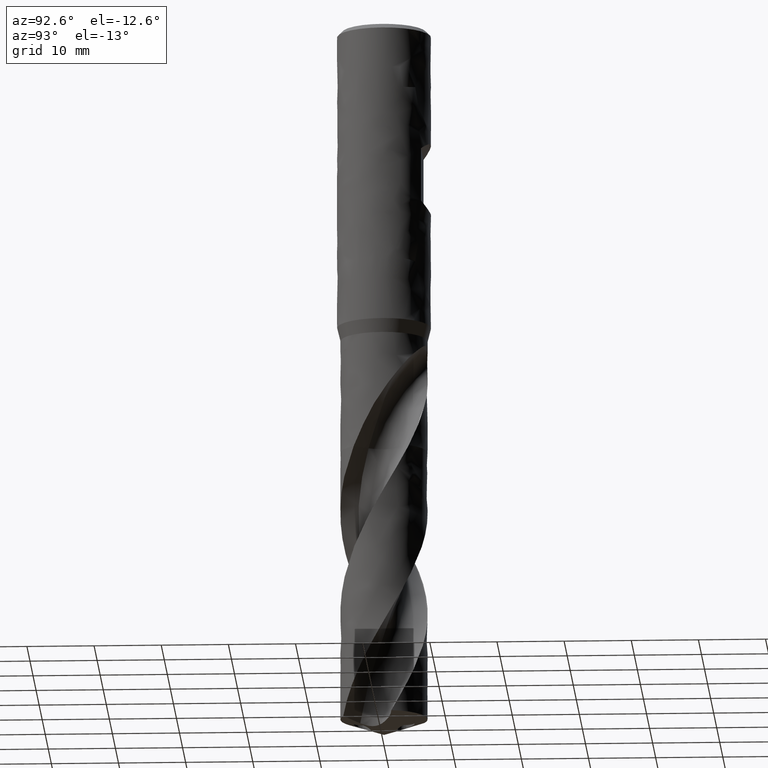
[diagram: clean part render]
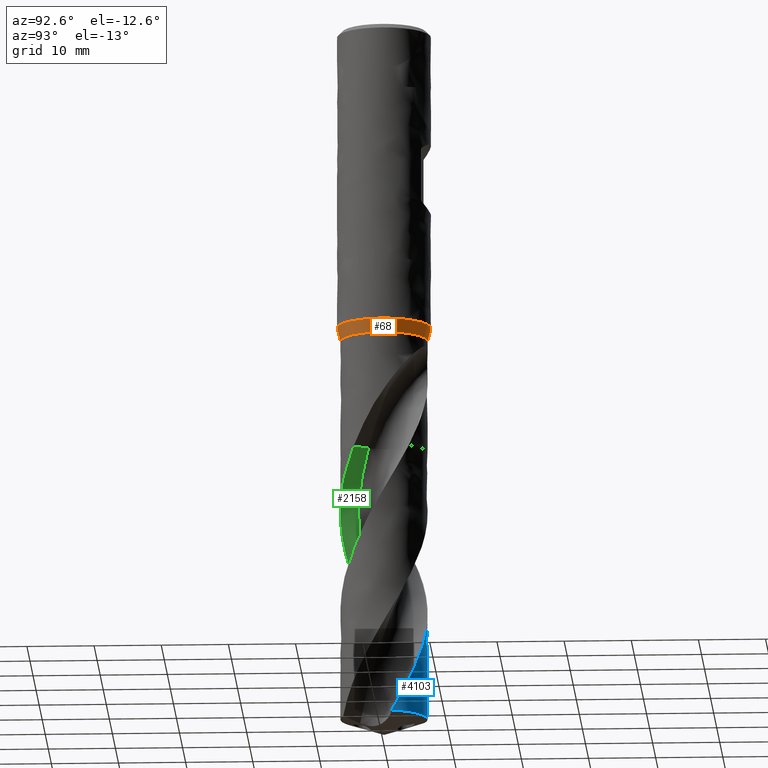
[diagram: same view with three faces highlighted in distinct colors, each labeled with its STEP entity id]
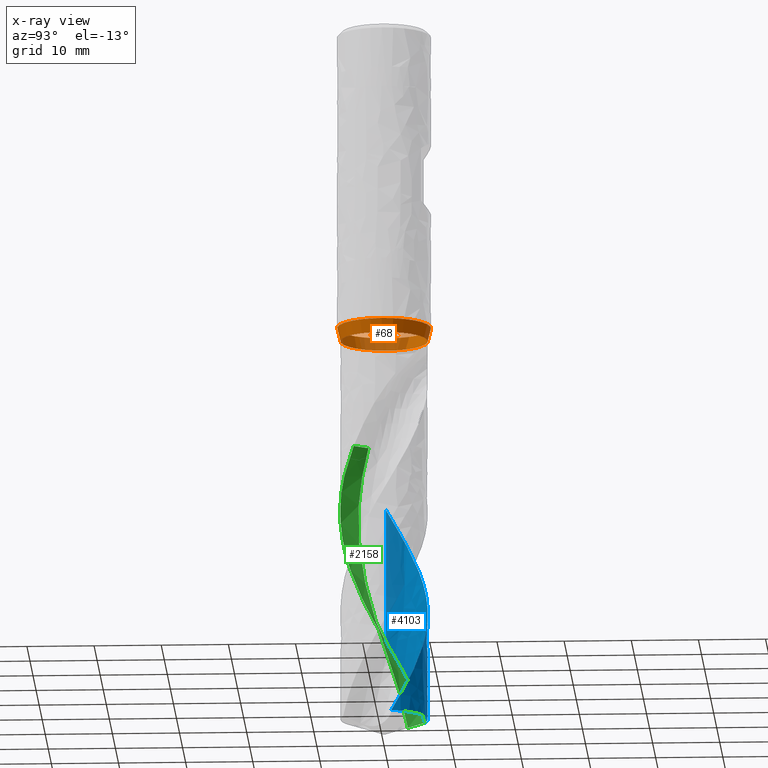
[diagram: x-ray of the same camera — body ghosted, the three highlighted faces saturated]
A machine part, auxiliary view with three faces highlighted in distinct colors.
The next image is the same camera in x-ray (body ghosted, the three faces saturated) — at least one of them is partly hidden behind the body in this view.
Their STEP definitions:

[orange] entity #68 — the highlighted face is a freeform B-spline surface patch.
#68 = ADVANCED_FACE('', (#69), #96, .T.);
#69 = FACE_OUTER_BOUND('', #70, .T.);
#70 = EDGE_LOOP('', (#71, #81, #88, #89));
#71 = ORIENTED_EDGE('', *, *, #72, .F.);
#72 = EDGE_CURVE('', #73, #75, #77, .T.);
#73 = VERTEX_POINT('', #74);
#74 = CARTESIAN_POINT('', (-7., 3.18408167778312E-15, -45.));
#75 = VERTEX_POINT('', #76);
#76 = CARTESIAN_POINT('', (-6.5, 3.27593018771917E-15, -47.));
#77 = LINE('', #78, #79);
#78 = CARTESIAN_POINT('', (-7., 3.18408167778312E-15, -45.));
#79 = VECTOR('', #80, 2.06155281280883);
#80 = DIRECTION('', (0.5, 9.18485099360514E-17, -2.));
#81 = ORIENTED_EDGE('', *, *, #82, .T.);
#82 = EDGE_CURVE('', #73, #73, #83, .T.);
#83 = CIRCLE('', #84, 7.);
#84 = AXIS2_PLACEMENT_3D('', #85, #86, #87);
#85 = CARTESIAN_POINT('', (1.68722975549459E-31, 2.75545529808154E-15, -45.));
#86 = DIRECTION('', (3.74939945665464E-33, 6.12323399573677E-17, -1.));
#87 = DIRECTION('', (-1., 6.12323399573677E-17, 0.));
#88 = ORIENTED_EDGE('', *, *, #72, .T.);
#89 = ORIENTED_EDGE('', *, *, #90, .F.);
#90 = EDGE_CURVE('', #75, #75, #91, .T.);
#91 = CIRCLE('', #92, 6.5);
#92 = AXIS2_PLACEMENT_3D('', #93, #94, #95);
#93 = CARTESIAN_POINT('', (1.76221774462768E-31, 2.87791997799628E-15, -47.));
#94 = DIRECTION('', (3.74939945665464E-33, 6.12323399573677E-17, -1.));
#95 = DIRECTION('', (-1., 6.12323399573677E-17, 0.));
#96 = (
   BOUNDED_SURFACE ()
   B_SPLINE_SURFACE (2, 1, ((#97, #98), (#99, #100), (#101, #102), (#103, #104), (#105, #106), (#107, #108), (#109, #110), (#111, #112), (#113, #114)), .UNSPECIFIED., .T., .F., .U.)
   B_SPLINE_SURFACE_WITH_KNOTS ((3, 2, 2, 2, 3), (2, 2), (0., 0.25, 0.5, 0.75, 1.), (0., 1.), .UNSPECIFIED.)
   GEOMETRIC_REPRESENTATION_ITEM ()
   RATIONAL_B_SPLINE_SURFACE (((1., 1.), (0.707106781186548, 0.707106781186548), (1., 1.), (0.707106781186548, 0.707106781186548), (1., 1.), (0.707106781186548, 0.707106781186548), (1., 1.), (0.707106781186548, 0.707106781186548), (1., 1.)))
   REPRESENTATION_ITEM ('')
   SURFACE ()
);
#97 = CARTESIAN_POINT('', (-7., 3.18408167778312E-15, -45.));
#98 = CARTESIAN_POINT('', (-6.5, 3.27593018771917E-15, -47.));
#99 = CARTESIAN_POINT('', (-7., 7., -45.));
#100 = CARTESIAN_POINT('', (-6.5, 6.5, -47.));
#101 = CARTESIAN_POINT('', (1.4791141972894E-31, 7., -45.));
#102 = CARTESIAN_POINT('', (1.4791141972894E-31, 6.5, -47.));
#103 = CARTESIAN_POINT('', (7., 7., -45.));
#104 = CARTESIAN_POINT('', (6.5, 6.5, -47.));
#105 = CARTESIAN_POINT('', (7., 3.18408167778312E-15, -45.));
#106 = CARTESIAN_POINT('', (6.5, 3.27593018771917E-15, -47.));
#107 = CARTESIAN_POINT('', (7., -7., -45.));
#108 = CARTESIAN_POINT('', (6.5, -6.5, -47.));
#109 = CARTESIAN_POINT('', (8.57252759403147E-16, -7., -45.));
#110 = CARTESIAN_POINT('', (7.9602041944578E-16, -6.5, -47.));
#111 = CARTESIAN_POINT('', (-7., -7., -45.));
#112 = CARTESIAN_POINT('', (-6.5, -6.5, -47.));
#113 = CARTESIAN_POINT('', (-7., 3.18408167778312E-15, -45.));
#114 = CARTESIAN_POINT('', (-6.5, 3.27593018771917E-15, -47.));

[blue] entity #4103 — the highlighted face is a freeform B-spline surface patch.
#2164 = VERTEX_POINT('', #2165);
#2165 = CARTESIAN_POINT('', (-6.5, 5.99766484225336E-15, -91.4493000990844));
#2280 = EDGE_CURVE('', #2281, #2164, #2283, .T.);
#2281 = VERTEX_POINT('', #2282);
#2282 = CARTESIAN_POINT('', (-2.61940619360716, 5.94884116386482, -104.63419347727));
#2283 = B_SPLINE_CURVE_WITH_KNOTS('', 3, (#2284, #2285, #2286, #2287, #2288, #2289, #2290, #2291, #2292, #2293, #2294, #2295, #2296, #2297, #2298, #2299, #2300, #2301, #2302, #2303, #2304, #2305, #2306, #2307, #2308, #2309, #2310, #2311, #2312, #2313, #2314, #2315, #2316, #2317, #2318, #2319, #2320, #2321, #2322, #2323, #2324, #2325, #2326, #2327, #2328, #2329, #2330, #2331, #2332), .UNSPECIFIED., .F., .U., (4, 3, 3, 3, 3, 3, 3, 3, 3, 3, 3, 3, 3, 3, 3, 3, 4), (0., 0.998336370863938, 1.99649047412275, 2.99446505108536, 3.99226193379354, 4.9898817935871, 5.98732581131095, 6.98459455805101, 7.98168743480267, 8.97860342666089, 9.97534175727482, 10.9719006848027, 11.9682773599798, 12.9644690597732, 13.9604725858547, 14.9562835495989, 15.1748740410164), .UNSPECIFIED.);
#2284 = CARTESIAN_POINT('', (-2.61940619360716, 5.94884116386482, -104.63419347727));
#2285 = CARTESIAN_POINT('', (-2.77000933407888, 5.88252727380425, -104.344948105084));
#2286 = CARTESIAN_POINT('', (-2.9181311318725, 5.81047320705004, -104.055659297088));
#2287 = CARTESIAN_POINT('', (-3.06329270126568, 5.73290832181821, -103.766430096253));
#2288 = CARTESIAN_POINT('', (-3.20842776831718, 5.65535759771112, -103.477253700379));
#2289 = CARTESIAN_POINT('', (-3.35065325148036, 5.57227156315184, -103.188033962482));
#2290 = CARTESIAN_POINT('', (-3.48950857905088, 5.48391556068567, -102.898873617238));
#2291 = CARTESIAN_POINT('', (-3.62833893233879, 5.39557544977954, -102.609765279881));
#2292 = CARTESIAN_POINT('', (-3.76384923208562, 5.30193606612728, -102.320614386521));
#2293 = CARTESIAN_POINT('', (-3.89559800422426, 5.20329858738512, -102.031522045313));
#2294 = CARTESIAN_POINT('', (-4.02732331784965, 5.10467867152848, -101.742481178409));
#2295 = CARTESIAN_POINT('', (-4.15533602928887, 5.00102684032901, -101.453397708881));
#2296 = CARTESIAN_POINT('', (-4.27921950007724, 4.89267620736941, -101.164373324449));
#2297 = CARTESIAN_POINT('', (-4.40308099223103, 4.78434479730496, -100.875400216925));
#2298 = CARTESIAN_POINT('', (-4.52285763517652, 4.67127878809751, -100.586383622219));
#2299 = CARTESIAN_POINT('', (-4.63816114285661, 4.5538402709027, -100.297426676787));
#2300 = CARTESIAN_POINT('', (-4.75344432695629, 4.43642245360848, -100.008520663369));
#2301 = CARTESIAN_POINT('', (-4.86429566266075, 4.31459315085372, -99.7195715668055));
#2302 = CARTESIAN_POINT('', (-4.9703542275206, 4.18874430503559, -99.4306814669928));
#2303 = CARTESIAN_POINT('', (-5.07639415575658, 4.06291757339193, -99.1418421309834));
#2304 = CARTESIAN_POINT('', (-5.17768100738963, 3.93302753030298, -98.8529603533684));
#2305 = CARTESIAN_POINT('', (-5.27388346603364, 3.79949380664018, -98.5641371784009));
#2306 = CARTESIAN_POINT('', (-5.37006895921538, 3.6659836318698, -98.2753649378767));
#2307 = CARTESIAN_POINT('', (-5.46120624816701, 3.52878341700518, -97.9865496802998));
#2308 = CARTESIAN_POINT('', (-5.54699811081937, 3.38833468809773, -97.6977938429317));
#2309 = CARTESIAN_POINT('', (-5.63277475394221, 3.24791087488172, -97.4090892310279));
#2310 = CARTESIAN_POINT('', (-5.71323737564219, 3.10419142447575, -97.1203411544657));
#2311 = CARTESIAN_POINT('', (-5.78812358453371, 2.95763847861173, -96.831652528894));
#2312 = CARTESIAN_POINT('', (-5.86299644789043, 2.81111165007248, -96.543015350767));
#2313 = CARTESIAN_POINT('', (-5.93232112351955, 2.66170083634852, -96.2543354120806));
#2314 = CARTESIAN_POINT('', (-5.99586996543632, 2.50988911260613, -95.9657141672432));
#2315 = CARTESIAN_POINT('', (-6.05940736918721, 2.35810471347934, -95.6771448713882));
#2316 = CARTESIAN_POINT('', (-6.11719395059292, 2.20386549327893, -95.3885329406229));
#2317 = CARTESIAN_POINT('', (-6.16903939367948, 2.04767012949616, -95.0999799951036));
#2318 = CARTESIAN_POINT('', (-6.22087535518536, 1.89150333098077, -94.8114798206259));
#2319 = CARTESIAN_POINT('', (-6.26679052297084, 1.73332654250228, -94.522936215087));
#2320 = CARTESIAN_POINT('', (-6.3066336893928, 1.5736491056827, -94.234452203749));
#2321 = CARTESIAN_POINT('', (-6.34646945900873, 1.41400131266742, -93.9460217489043));
#2322 = CARTESIAN_POINT('', (-6.38024920832287, 1.25279827353652, -93.6575480709661));
#2323 = CARTESIAN_POINT('', (-6.40786061987278, 1.09056053306734, -93.3691335096882));
#2324 = CARTESIAN_POINT('', (-6.43546681581829, 0.92835343818357, -93.0807734279231));
#2325 = CARTESIAN_POINT('', (-6.45691682009467, 0.765054035860771, -92.7923707610906));
#2326 = CARTESIAN_POINT('', (-6.472137851813, 0.601191838875201, -92.5040267286688));
#2327 = CARTESIAN_POINT('', (-6.48735594077324, 0.437361322186758, -92.2157384432393));
#2328 = CARTESIAN_POINT('', (-6.49635296757946, 0.272909456583068, -91.9274071935528));
#2329 = CARTESIAN_POINT('', (-6.49909658321736, 0.10836790121551, -91.6391352506302));
#2330 = CARTESIAN_POINT('', (-6.49969883435978, 0.0722493799741283, -91.5758566686909));
#2331 = CARTESIAN_POINT('', (-6.5, 0.0361248580397348, -91.5125779296964));
#2332 = CARTESIAN_POINT('', (-6.5, 5.42260400996705E-15, -91.4493000990844));
#2487 = VERTEX_POINT('', #2488);
#2488 = CARTESIAN_POINT('', (-6.5, 4.76532969912972E-15, -71.323739913378));
#2495 = EDGE_CURVE('', #2487, #2164, #2496, .T.);
#2496 = LINE('', #2497, #2498);
#2497 = CARTESIAN_POINT('', (-6.5, 4.76532969912972E-15, -71.323739913378));
#2498 = VECTOR('', #2499, 20.1255601857065);
#2499 = DIRECTION('', (0., 1.23233514312364E-15, -20.1255601857065));
#2569 = VERTEX_POINT('', #2570);
#2570 = CARTESIAN_POINT('', (6.35152089864831, 1.3813697093949, -104.63419347727));
#2709 = EDGE_CURVE('', #2710, #2569, #2712, .T.);
#2710 = VERTEX_POINT('', #2711);
#2711 = CARTESIAN_POINT('', (5.90833566697193, 2.70953310487018, -102.160751738249));
#2712 = B_SPLINE_CURVE_WITH_KNOTS('', 3, (#2713, #2714, #2715, #2716, #2717, #2718, #2719, #2720, #2721, #2722), .UNSPECIFIED., .F., .U., (4, 3, 3, 4), (0., 0.996649814284806, 1.99312293181498, 2.84343295820334), .UNSPECIFIED.);
#2713 = CARTESIAN_POINT('', (5.90833566697188, 2.70953310487027, -102.160751738249));
#2714 = CARTESIAN_POINT('', (5.97668161123896, 2.56049976053498, -102.449690774479));
#2715 = CARTESIAN_POINT('', (6.03938812307023, 2.40887095584368, -102.738691504657));
#2716 = CARTESIAN_POINT('', (6.09625753935408, 2.25513724945253, -103.027654632911));
#2717 = CARTESIAN_POINT('', (6.15311687321866, 2.10143079861955, -103.316566530686));
#2718 = CARTESIAN_POINT('', (6.20416159151847, 1.94556528476745, -103.605540468623));
#2719 = CARTESIAN_POINT('', (6.24923272492601, 1.7880409250667, -103.894475427715));
#2720 = CARTESIAN_POINT('', (6.28769280574796, 1.65362230393426, -104.141029286889));
#2721 = CARTESIAN_POINT('', (6.32181427634443, 1.51796039261904, -104.387623302988));
#2722 = CARTESIAN_POINT('', (6.35152089864831, 1.3813697093949, -104.63419347727));
#3471 = EDGE_CURVE('', #2281, #2569, #3472, .T.);
#3472 = CIRCLE('', #3473, 6.5);
#3473 = AXIS2_PLACEMENT_3D('', #3474, #3475, #3476);
#3474 = CARTESIAN_POINT('', (3.92315388171172E-31, 6.40699650616516E-15, -104.63419347727));
#3475 = DIRECTION('', (3.74939945665464E-33, 6.12323399573677E-17, -1.));
#3476 = DIRECTION('', (-1., 6.12323399573677E-17, 0.));
#4103 = ADVANCED_FACE('', (#4104), #4225, .T.);
#4104 = FACE_OUTER_BOUND('', #4105, .T.);
#4105 = EDGE_LOOP('', (#4106, #4107, #4108, #4223, #4224));
#4106 = ORIENTED_EDGE('', *, *, #2280, .T.);
#4107 = ORIENTED_EDGE('', *, *, #2495, .F.);
#4108 = ORIENTED_EDGE('', *, *, #4109, .F.);
#4109 = EDGE_CURVE('', #2710, #2487, #4110, .T.);
#4110 = B_SPLINE_CURVE_WITH_KNOTS('', 3, (#4111, #4112, #4113, #4114, #4115, #4116, #4117, #4118, #4119, #4120, #4121, #4122, #4123, #4124, #4125, #4126, #4127, #4128, #4129, #4130, #4131, #4132, #4133, #4134, #4135, #4136, #4137, #4138, #4139, #4140, #4141, #4142, #4143, #4144, #4145, #4146, #4147, #4148, #4149, #4150, #4151, #4152, #4153, #4154, #4155, #4156, #4157, #4158, #4159, #4160, #4161, #4162, #4163, #4164, #4165, #4166, #4167, #4168, #4169, #4170, #4171, #4172, #4173, #4174, #4175, #4176, #4177, #4178, #4179, #4180, #4181, #4182, #4183, #4184, #4185, #4186, #4187, #4188, #4189, #4190, #4191, #4192, #4193, #4194, #4195, #4196, #4197, #4198, #4199, #4200, #4201, #4202, #4203, #4204, #4205, #4206, #4207, #4208, #4209, #4210, #4211, #4212, #4213, #4214, #4215, #4216, #4217, #4218, #4219, #4220, #4221, #4222), .UNSPECIFIED., .F., .U., (4, 3, 3, 3, 3, 3, 3, 3, 3, 3, 3, 3, 3, 3, 3, 3, 3, 3, 3, 3, 3, 3, 3, 3, 3, 3, 3, 3, 3, 3, 3, 3, 3, 3, 3, 3, 3, 4), (0., 0.998296410037865, 1.99641239974501, 2.9943506074266, 3.99211265734012, 4.98969902176801, 5.98711038125016, 6.98434712252083, 7.98140855801874, 8.978293266987, 9.9750001472817, 10.9715273199202, 11.967871760806, 12.9640302635077, 13.9599993900554, 14.9557746012016, 15.0433497252378, 16.042758257145, 17.0419578371459, 18.0409548232524, 19.0397543714496, 20.0383607085247, 21.0367778491704, 22.0350090598024, 23.033056608306, 24.0309223717038, 25.0286079477333, 26.0261141831036, 27.0234411216423, 28.0205886480831, 29.0175562031734, 30.0143423988299, 31.0109452603562, 32.0073625921164, 33.0035915122105, 33.9996282322789, 34.9954685812883, 35.516689479616), .UNSPECIFIED.);
#4111 = CARTESIAN_POINT('', (5.90833566697193, 2.70953310487018, -102.160751738249));
#4112 = CARTESIAN_POINT('', (5.83987680627227, 2.85881267176864, -101.871335336967));
#4113 = CARTESIAN_POINT('', (5.76573385839543, 3.00554505469318, -101.581882684437));
#4114 = CARTESIAN_POINT('', (5.6861399264842, 3.14925590202549, -101.2924956488));
#4115 = CARTESIAN_POINT('', (5.6065603794424, 3.29294077675251, -101.003160913566));
#4116 = CARTESIAN_POINT('', (5.52150519281188, 3.43365333706416, -100.713789152601));
#4117 = CARTESIAN_POINT('', (5.43124226065199, 3.5709393030557, -100.424483080827));
#4118 = CARTESIAN_POINT('', (5.34099540590903, 3.70820081600033, -100.135228539557));
#4119 = CARTESIAN_POINT('', (5.24551123179931, 3.84208454601663, -99.8459381026975));
#4120 = CARTESIAN_POINT('', (5.14509391164331, 3.97215415616904, -99.5567121258216));
#4121 = CARTESIAN_POINT('', (5.0446943173253, 4.10220080621025, -99.2675372036125));
#4122 = CARTESIAN_POINT('', (4.93932682024955, 4.22848195885525, -98.9783265920068));
#4123 = CARTESIAN_POINT('', (4.82932762109126, 4.35058556152675, -98.6891808990421));
#4124 = CARTESIAN_POINT('', (4.71934779054168, 4.47266766425171, -98.4000861187188));
#4125 = CARTESIAN_POINT('', (4.60470001561123, 4.59061587370014, -98.1109542894343));
#4126 = CARTESIAN_POINT('', (4.4857480669474, 4.7040476485552, -97.8218884469244));
#4127 = CARTESIAN_POINT('', (4.36681698582955, 4.81745952425936, -97.532873314763));
#4128 = CARTESIAN_POINT('', (4.24354305691577, 4.92639479017414, -97.2438214125278));
#4129 = CARTESIAN_POINT('', (4.1163196945019, 5.03049820322559, -96.954834738662));
#4130 = CARTESIAN_POINT('', (3.98911860526126, 5.1345833907459, -96.6658986581001));
#4131 = CARTESIAN_POINT('', (3.85792385826869, 5.23387561236822, -96.3769268765857));
#4132 = CARTESIAN_POINT('', (3.72315759073756, 5.32804819371347, -96.0880194864517));
#4133 = CARTESIAN_POINT('', (3.58841501397482, 5.42220422031654, -95.7991628837898));
#4134 = CARTESIAN_POINT('', (3.45005353504661, 5.51127647678093, -95.5102699509256));
#4135 = CARTESIAN_POINT('', (3.30851644172456, 5.59497265005275, -95.2214425664323));
#4136 = CARTESIAN_POINT('', (3.16700443548184, 5.67865398839693, -94.9326663758368));
#4137 = CARTESIAN_POINT('', (3.02226994751349, 5.7569895855002, -94.6438528700881));
#4138 = CARTESIAN_POINT('', (2.87477545401095, 5.82972264254624, -94.3551052651597));
#4139 = CARTESIAN_POINT('', (2.72730727122408, 5.90244272515005, -94.0664091682974));
#4140 = CARTESIAN_POINT('', (2.57702892596407, 5.96958737186774, -93.7776766904442));
#4141 = CARTESIAN_POINT('', (2.42442465080043, 6.03093401660069, -93.4890089990174));
#4142 = CARTESIAN_POINT('', (2.27184789040283, 6.09226960044708, -93.2003933547826));
#4143 = CARTESIAN_POINT('', (2.11689049000577, 6.14783157662691, -92.9117417674891));
#4144 = CARTESIAN_POINT('', (1.96005297063063, 6.19743433626547, -92.6231550898534));
#4145 = CARTESIAN_POINT('', (1.80324421032558, 6.24702800031743, -92.3346213299412));
#4146 = CARTESIAN_POINT('', (1.64450101864837, 6.29068212397065, -92.0460504373757));
#4147 = CARTESIAN_POINT('', (1.48433299629907, 6.32825059207505, -91.7575455600294));
#4148 = CARTESIAN_POINT('', (1.32419486456792, 6.36581204913744, -91.4690945235747));
#4149 = CARTESIAN_POINT('', (1.16257798699603, 6.39730285957647, -91.1806063440244));
#4150 = CARTESIAN_POINT('', (1.00000275823105, 6.42261585987603, -90.8921836824137));
#4151 = CARTESIAN_POINT('', (0.837458436065239, 6.44792404801104, -90.6038158518105));
#4152 = CARTESIAN_POINT('', (0.673898045693393, 6.46706571986573, -90.3154119171083));
#4153 = CARTESIAN_POINT('', (0.509852313960452, 6.47997304145246, -90.0270725931661));
#4154 = CARTESIAN_POINT('', (0.345838521966496, 6.49287784998093, -89.7387894089517));
#4155 = CARTESIAN_POINT('', (0.181279920992048, 6.49955547758579, -89.4504697417992));
#4156 = CARTESIAN_POINT('', (0.0167088512395681, 6.49997852414089, -89.1622156240831));
#4157 = CARTESIAN_POINT('', (0.00223537199945978, 6.50001572968098, -89.1368646313788));
#4158 = CARTESIAN_POINT('', (-0.0122384417967436, 6.50000459341879, -89.1115137126355));
#4159 = CARTESIAN_POINT('', (-0.0267122244688994, 6.4999451118501, -89.0861629356501));
#4160 = CARTESIAN_POINT('', (-0.191887233362379, 6.49926630736202, -88.7968595165739));
#4161 = CARTESIAN_POINT('', (-0.357089921071106, 6.49228671151368, -88.5075181555552));
#4162 = CARTESIAN_POINT('', (-0.521783684818967, 6.47902321235671, -88.2182436208994));
#4163 = CARTESIAN_POINT('', (-0.686443015124662, 6.46576248627336, -87.9290295664812));
#4164 = CARTESIAN_POINT('', (-0.850650649504803, 6.44621582899201, -87.639777986709));
#4165 = CARTESIAN_POINT('', (-1.0138704880483, 6.42044131142595, -87.3505924584817));
#4166 = CARTESIAN_POINT('', (-1.1770572327601, 6.39467201980272, -87.0614655644088));
#4167 = CARTESIAN_POINT('', (-1.33931605322672, 6.36266792562297, -86.7723020100274));
#4168 = CARTESIAN_POINT('', (-1.50011402962351, 6.32452827475116, -86.4832039146779));
#4169 = CARTESIAN_POINT('', (-1.66088022652875, 6.28639616165277, -86.1941629555603));
#4170 = CARTESIAN_POINT('', (-1.82024475892432, 6.24211708610278, -85.905084654048));
#4171 = CARTESIAN_POINT('', (-1.97768645589568, 6.19182980080742, -85.6160728806603));
#4172 = CARTESIAN_POINT('', (-2.1350976968191, 6.14155224325256, -85.3271170146757));
#4173 = CARTESIAN_POINT('', (-2.29064137747636, 6.08525141282479, -85.0381230871739));
#4174 = CARTESIAN_POINT('', (-2.44380961319559, 6.02310506088454, -84.7491958531567));
#4175 = CARTESIAN_POINT('', (-2.59694882958835, 5.96097048322155, -84.4603233594301));
#4176 = CARTESIAN_POINT('', (-2.74776779411993, 5.89297046979808, -84.1714136776845));
#4177 = CARTESIAN_POINT('', (-2.89577041710553, 5.81932244264026, -83.8825697152139));
#4178 = CARTESIAN_POINT('', (-3.04374547833502, 5.74568813057018, -83.5937795426471));
#4179 = CARTESIAN_POINT('', (-3.18895978102907, 5.66638076125809, -83.3049524270566));
#4180 = CARTESIAN_POINT('', (-3.33093497757147, 5.58165496740806, -83.0161913184317));
#4181 = CARTESIAN_POINT('', (-3.47288405244336, 5.4969447620504, -82.7274833382596));
#4182 = CARTESIAN_POINT('', (-3.61164566256871, 5.40678810836563, -82.4387373451726));
#4183 = CARTESIAN_POINT('', (-3.74676488636986, 5.31147370192736, -82.1500582571726));
#4184 = CARTESIAN_POINT('', (-3.88185949945739, 5.21617665612434, -81.8614317493915));
#4185 = CARTESIAN_POINT('', (-4.01336005752219, 5.11569052846903, -81.5727673745876));
#4186 = CARTESIAN_POINT('', (-4.14083380986774, 5.01033884673046, -81.2841693703746));
#4187 = CARTESIAN_POINT('', (-4.26828454392685, 4.90500618863513, -80.9956234790977));
#4188 = CARTESIAN_POINT('', (-4.39175625073792, 4.79477134382971, -80.707040590686));
#4189 = CARTESIAN_POINT('', (-4.51083979104934, 4.67999192087829, -80.4185233739724));
#4190 = CARTESIAN_POINT('', (-4.62990192529742, 4.56523313029629, -80.1300580201593));
#4191 = CARTESIAN_POINT('', (-4.74462126067634, 4.4458892550786, -79.8415552264633));
#4192 = CARTESIAN_POINT('', (-4.85461843841682, 4.32234656377569, -79.5531190004222));
#4193 = CARTESIAN_POINT('', (-4.96459584470651, 4.19882607866289, -79.2647346193718));
#4194 = CARTESIAN_POINT('', (-5.06989135483525, 4.07106503461082, -78.9763119816522));
#4195 = CARTESIAN_POINT('', (-5.17015731867012, 3.93947627232375, -78.687956254283));
#4196 = CARTESIAN_POINT('', (-5.27040524536368, 3.80791118192901, -78.3996524000801));
#4197 = CARTESIAN_POINT('', (-5.36566097687769, 3.67247297265653, -78.1113109978373));
#4198 = CARTESIAN_POINT('', (-5.45560762399465, 3.53360233373983, -77.8230356459868));
#4199 = CARTESIAN_POINT('', (-5.54553803698463, 3.39475675905461, -77.5348123238541));
#4200 = CARTESIAN_POINT('', (-5.63019446650173, 3.25242871278681, -77.2465518398408));
#4201 = CARTESIAN_POINT('', (-5.70929403097388, 3.10708250097838, -76.9583574717059));
#4202 = CARTESIAN_POINT('', (-5.78837920635969, 2.96176272925473, -76.6702155293166));
#4203 = CARTESIAN_POINT('', (-5.86193804985212, 2.81337364514002, -76.3820355010386));
#4204 = CARTESIAN_POINT('', (-5.9297251928353, 2.6623972538775, -76.0939224806612));
#4205 = CARTESIAN_POINT('', (-5.99749986805262, 2.51144863098244, -75.8058624515372));
#4206 = CARTESIAN_POINT('', (-6.05952871721453, 2.35786069444081, -75.5177642881083));
#4207 = CARTESIAN_POINT('', (-6.11560362450886, 2.20213358084705, -75.229732788794));
#4208 = CARTESIAN_POINT('', (-6.17166809277593, 2.04643545775299, -74.9417549100528));
#4209 = CARTESIAN_POINT('', (-6.22180116949654, 1.88854225135626, -74.653739725215));
#4210 = CARTESIAN_POINT('', (-6.26583258329901, 1.72897138150659, -74.3657904920586));
#4211 = CARTESIAN_POINT('', (-6.30985567124064, 1.56943068477063, -74.0778957069664));
#4212 = CARTESIAN_POINT('', (-6.34779570346278, 1.40815400961908, -73.7899633442772));
#4213 = CARTESIAN_POINT('', (-6.37952262978519, 1.24566890306345, -73.5020976364134));
#4214 = CARTESIAN_POINT('', (-6.41124343510876, 1.08321514436475, -73.2142874657814));
#4215 = CARTESIAN_POINT('', (-6.43676480833751, 0.919495926825077, -72.9264388537189));
#4216 = CARTESIAN_POINT('', (-6.45599773796605, 0.755045169098039, -72.6386573911021));
#4217 = CARTESIAN_POINT('', (-6.4752268757758, 0.590626833237396, -72.3509326652998));
#4218 = CARTESIAN_POINT('', (-6.48817683928818, 0.425418540764542, -72.0631701972231));
#4219 = CARTESIAN_POINT('', (-6.49479942820782, 0.259962280635745, -71.7754741179201));
#4220 = CARTESIAN_POINT('', (-6.49826567834459, 0.173362796467345, -71.6248945505739));
#4221 = CARTESIAN_POINT('', (-6.5, 0.0866826846152179, -71.474311503787));
#4222 = CARTESIAN_POINT('', (-6.5, 5.05329379614187E-15, -71.323739913378));
#4223 = ORIENTED_EDGE('', *, *, #2709, .T.);
#4224 = ORIENTED_EDGE('', *, *, #3471, .F.);
#4225 = (
   BOUNDED_SURFACE ()
   B_SPLINE_SURFACE (2, 1, ((#4226, #4227), (#4228, #4229), (#4230, #4231), (#4232, #4233), (#4234, #4235)), .UNSPECIFIED., .F., .F., .U.)
   B_SPLINE_SURFACE_WITH_KNOTS ((3, 2, 3), (2, 2), (0., 10.2101761241668, 18.9344651002863), (0.422036614826075, 1.), .UNSPECIFIED.)
   GEOMETRIC_REPRESENTATION_ITEM ()
   RATIONAL_B_SPLINE_SURFACE (((1., 1.), (0.707106781186548, 0.707106781186548), (1., 1.), (0.749731537536736, 0.749731537536736), (0.927156850692215, 0.927156850692215)))
   REPRESENTATION_ITEM ('')
   SURFACE ()
);
#4226 = CARTESIAN_POINT('', (-6.5, 4.76532969912972E-15, -71.323739913378));
#4227 = CARTESIAN_POINT('', (-6.5, 6.80500671588805E-15, -104.63419347727));
#4228 = CARTESIAN_POINT('', (-6.5, 6.50000000000001, -71.323739913378));
#4229 = CARTESIAN_POINT('', (-6.5, 6.50000000000001, -104.63419347727));
#4230 = CARTESIAN_POINT('', (3.45126646034193E-31, 6.5, -71.323739913378));
#4231 = CARTESIAN_POINT('', (3.94430452610506E-31, 6.50000000000001, -104.63419347727));
#4232 = CARTESIAN_POINT('', (5.2382881863797, 6.50000000000001, -71.323739913378));
#4233 = CARTESIAN_POINT('', (5.2382881863797, 6.50000000000001, -104.63419347727));
#4234 = CARTESIAN_POINT('', (6.35152089864831, 1.38136970939489, -71.323739913378));
#4235 = CARTESIAN_POINT('', (6.35152089864831, 1.38136970939489, -104.63419347727));

[green] entity #2158 — the highlighted face is a freeform B-spline surface patch.
#1633 = EDGE_CURVE('', #1634, #1636, #1638, .T.);
#1634 = VERTEX_POINT('', #1635);
#1635 = CARTESIAN_POINT('', (4.87816629638356, -4.29575297064758, -64.));
#1636 = VERTEX_POINT('', #1637);
#1637 = CARTESIAN_POINT('', (3.274731390133, -2.16180100099735, -64.));
#1638 = LINE('', #1639, #1640);
#1639 = CARTESIAN_POINT('', (4.87816629638356, -4.29575297064758, -64.));
#1640 = VECTOR('', #1641, 2.66922357762644);
#1641 = DIRECTION('', (-1.60343490625057, 2.13395196965023, 0.));
#1694 = EDGE_CURVE('', #1695, #1636, #1697, .T.);
#1695 = VERTEX_POINT('', #1696);
#1696 = CARTESIAN_POINT('', (-1.76933288508049, 3.4667509077758, -105.583370022159));
#1697 = B_SPLINE_CURVE_WITH_KNOTS('', 3, (#1698, #1699, #1700, #1701, #1702, #1703, #1704, #1705, #1706, #1707, #1708, #1709, #1710, #1711, #1712, #1713, #1714, #1715, #1716, #1717, #1718, #1719, #1720, #1721, #1722, #1723, #1724, #1725, #1726, #1727, #1728, #1729, #1730, #1731, #1732, #1733, #1734, #1735), .UNSPECIFIED., .F., .U., (4, 1, 1, 1, 1, 1, 1, 1, 1, 1, 1, 1, 1, 1, 1, 1, 1, 1, 1, 1, 1, 1, 1, 1, 1, 1, 1, 1, 1, 1, 1, 1, 1, 1, 1, 4), (1.46662997784129, 2.41020408163265, 3.61530612244898, 4.82040816326531, 6.02551020408163, 7.23061224489796, 8.43571428571429, 9.64081632653061, 10.8459183673469, 12.0510204081633, 13.2561224489796, 14.4612244897959, 15.6663265306122, 16.8714285714286, 18.0765306122449, 19.2816326530612, 20.4867346938776, 21.6918367346939, 22.8969387755102, 24.1020408163265, 25.3071428571429, 26.5122448979592, 27.7173469387755, 28.9224489795918, 30.1275510204082, 31.3326530612245, 32.5377551020408, 33.7428571428571, 34.9479591836735, 36.1530612244898, 37.3581632653061, 38.5632653061224, 39.7683673469388, 40.9734693877551, 42.1785714285714, 43.05), .UNSPECIFIED.);
#1698 = CARTESIAN_POINT('', (-1.76933288508049, 3.4667509077758, -105.583370022159));
#1699 = CARTESIAN_POINT('', (-1.86403161741141, 3.41547287836797, -105.268845320895));
#1700 = CARTESIAN_POINT('', (-2.07468531352025, 3.29001168240016, -104.552619939359));
#1701 = CARTESIAN_POINT('', (-2.38330179197817, 3.06480483217447, -103.434693877551));
#1702 = CARTESIAN_POINT('', (-2.68814217933525, 2.78931151072498, -102.229591836735));
#1703 = CARTESIAN_POINT('', (-2.96199499352436, 2.48419282969366, -101.024489795918));
#1704 = CARTESIAN_POINT('', (-3.20205648307337, 2.15284875457278, -99.819387755102));
#1705 = CARTESIAN_POINT('', (-3.40588527757476, 1.79893476523793, -98.6142857142857));
#1706 = CARTESIAN_POINT('', (-3.57142669086556, 1.4263264418481, -97.4091836734694));
#1707 = CARTESIAN_POINT('', (-3.69703120537813, 1.039078968413, -96.2040816326531));
#1708 = CARTESIAN_POINT('', (-3.78146949403353, 0.64138595609647, -94.9989795918367));
#1709 = CARTESIAN_POINT('', (-3.82394319587153, 0.237536894513291, -93.7938775510204));
#1710 = CARTESIAN_POINT('', (-3.82409154838274, -0.168126086225973, -92.5887755102041));
#1711 = CARTESIAN_POINT('', (-3.78199378763708, -0.571251822612417, -91.3836734693878));
#1712 = CARTESIAN_POINT('', (-3.69816732451443, -0.967523674991307, -90.1785714285715));
#1713 = CARTESIAN_POINT('', (-3.57356172485133, -1.35270264467176, -88.9734693877551));
#1714 = CARTESIAN_POINT('', (-3.40954856110614, -1.72266965894615, -87.7683673469388));
#1715 = CARTESIAN_POINT('', (-3.20790723667037, -2.07346664231646, -86.5632653061224));
#1716 = CARTESIAN_POINT('', (-2.97080691804732, -2.40133600295454, -85.3581632653061));
#1717 = CARTESIAN_POINT('', (-2.700784742685, -2.70275817758208, -84.1530612244898));
#1718 = CARTESIAN_POINT('', (-2.40072050156955, -2.97448689464155, -82.9479591836735));
#1719 = CARTESIAN_POINT('', (-2.07380802549667, -3.21358183490345, -81.7428571428572));
#1720 = CARTESIAN_POINT('', (-1.72352353182169, -3.41743839049558, -80.5377551020408));
#1721 = CARTESIAN_POINT('', (-1.35359121524302, -3.58381424703326, -79.3326530612245));
#1722 = CARTESIAN_POINT('', (-0.967946387922443, -3.71085254113962, -78.1275510204082));
#1723 = CARTESIAN_POINT('', (-0.570696504644847, -3.79710136875351, -76.9224489795918));
#1724 = CARTESIAN_POINT('', (-0.166080396016394, -3.84152946889433, -75.7173469387755));
#1725 = CARTESIAN_POINT('', (0.241573830700889, -3.84353786773257, -74.5122448979592));
#1726 = CARTESIAN_POINT('', (0.647892196388959, -3.80296756817976, -73.3071428571429));
#1727 = CARTESIAN_POINT('', (1.04849785427849, -3.72010240775061, -72.1020408163266));
#1728 = CARTESIAN_POINT('', (1.4390582048143, -3.59566996371032, -70.8969387755102));
#1729 = CARTESIAN_POINT('', (1.8153173920344, -3.43082953503108, -69.6918367346939));
#1730 = CARTESIAN_POINT('', (2.17318216479515, -3.22718809041111, -68.4867346938776));
#1731 = CARTESIAN_POINT('', (2.50860546387415, -2.98669170372673, -67.2816326530612));
#1732 = CARTESIAN_POINT('', (2.81821987923533, -2.71196183364428, -66.0765306122449));
#1733 = CARTESIAN_POINT('', (3.07142043178922, -2.43328741944994, -64.9826530612245));
#1734 = CARTESIAN_POINT('', (3.21742118566723, -2.24403980479223, -64.2904761904762));
#1735 = CARTESIAN_POINT('', (3.274731390133, -2.16180100099735, -64.));
#2158 = ADVANCED_FACE('', (#2159), #2365, .T.);
#2159 = FACE_OUTER_BOUND('', #2160, .T.);
#2160 = EDGE_LOOP('', (#2161, #2162, #2279, #2333, #2364));
#2161 = ORIENTED_EDGE('', *, *, #1633, .F.);
#2162 = ORIENTED_EDGE('', *, *, #2163, .T.);
#2163 = EDGE_CURVE('', #1634, #2164, #2166, .T.);
#2164 = VERTEX_POINT('', #2165);
#2165 = CARTESIAN_POINT('', (-6.5, 5.99766484225336E-15, -91.4493000990844));
#2166 = B_SPLINE_CURVE_WITH_KNOTS('', 3, (#2167, #2168, #2169, #2170, #2171, #2172, #2173, #2174, #2175, #2176, #2177, #2178, #2179, #2180, #2181, #2182, #2183, #2184, #2185, #2186, #2187, #2188, #2189, #2190, #2191, #2192, #2193, #2194, #2195, #2196, #2197, #2198, #2199, #2200, #2201, #2202, #2203, #2204, #2205, #2206, #2207, #2208, #2209, #2210, #2211, #2212, #2213, #2214, #2215, #2216, #2217, #2218, #2219, #2220, #2221, #2222, #2223, #2224, #2225, #2226, #2227, #2228, #2229, #2230, #2231, #2232, #2233, #2234, #2235, #2236, #2237, #2238, #2239, #2240, #2241, #2242, #2243, #2244, #2245, #2246, #2247, #2248, #2249, #2250, #2251, #2252, #2253, #2254, #2255, #2256, #2257, #2258, #2259, #2260, #2261, #2262, #2263, #2264, #2265, #2266, #2267, #2268, #2269, #2270, #2271, #2272, #2273, #2274, #2275, #2276, #2277, #2278), .UNSPECIFIED., .F., .U., (4, 3, 3, 3, 3, 3, 3, 3, 3, 3, 3, 3, 3, 3, 3, 3, 3, 3, 3, 3, 3, 3, 3, 3, 3, 3, 3, 3, 3, 3, 3, 3, 3, 3, 3, 3, 3, 4), (14.5042565012158, 14.9427696042247, 15.3861502414867, 15.6817237644316, 16.6791014798207, 17.1224118674347, 18.1195608919348, 19.1165111871556, 19.7812217097101, 20.7778786400272, 21.7743492231125, 22.7706352856843, 23.7667338761386, 24.7626404493412, 25.4268740999549, 25.558208770073, 25.6165926721281, 26.6160233026443, 27.6152396969475, 28.6142487454636, 29.6130569021244, 30.6116693015163, 31.6100899198798, 32.6083228369021, 33.6063714350416, 34.6042379547013, 35.6019241519738, 36.5994318115747, 37.596761869741, 38.5939143070916, 39.5908890969763, 40.5876858212368, 41.58430315183, 42.580739089444, 43.5769915703944, 44.5730578261349, 45.5689340849885, 46.1381731945472), .UNSPECIFIED.);
#2167 = CARTESIAN_POINT('', (4.87816629638356, -4.29575297064758, -64.));
#2168 = CARTESIAN_POINT('', (4.83004886397606, -4.35039411008055, -64.1267478988343));
#2169 = CARTESIAN_POINT('', (4.78097103986535, -4.40427406019836, -64.2534744560364));
#2170 = CARTESIAN_POINT('', (4.73098189055815, -4.4573322011278, -64.3801705092961));
#2171 = CARTESIAN_POINT('', (4.68043785726945, -4.51097929211737, -64.50827289996));
#2172 = CARTESIAN_POINT('', (4.62895565993785, -4.56379289201159, -64.6363603190502));
#2173 = CARTESIAN_POINT('', (4.57659959986236, -4.61570537432142, -64.7644496211809));
#2174 = CARTESIAN_POINT('', (4.54169716203921, -4.65031210720873, -64.8498385694132));
#2175 = CARTESIAN_POINT('', (4.50640751463138, -4.68451757356126, -64.9352336916637));
#2176 = CARTESIAN_POINT('', (4.47074563304551, -4.71830832869202, -65.0206356452525));
#2177 = CARTESIAN_POINT('', (4.35040885311941, -4.83233121483488, -65.3088143850514));
#2178 = CARTESIAN_POINT('', (4.22579752872954, -4.94166568814912, -65.5971326366302));
#2179 = CARTESIAN_POINT('', (4.09723689124778, -5.04605289875148, -65.885411352446));
#2180 = CARTESIAN_POINT('', (4.04009478234101, -5.09245050126461, -66.0135443027589));
#2181 = CARTESIAN_POINT('', (3.9821621465247, -5.13787932226918, -66.1416816130085));
#2182 = CARTESIAN_POINT('', (3.92346977302825, -5.1823146315265, -66.2698093604706));
#2183 = CARTESIAN_POINT('', (3.79145156498992, -5.28226407218312, -66.5580102733365));
#2184 = CARTESIAN_POINT('', (3.65556046124698, -5.37720203956905, -66.8462445188988));
#2185 = CARTESIAN_POINT('', (3.51628176567264, -5.46678722325993, -67.1344361286658));
#2186 = CARTESIAN_POINT('', (3.37703082799015, -5.55635455285023, -67.4225703025738));
#2187 = CARTESIAN_POINT('', (3.23435446826813, -5.64059812923841, -67.7107732164445));
#2188 = CARTESIAN_POINT('', (3.08871806195297, -5.71925001497272, -67.9989369726233));
#2189 = CARTESIAN_POINT('', (2.99161587721139, -5.77169067958455, -68.1910683976994));
#2190 = CARTESIAN_POINT('', (2.89317788421146, -5.82165766188028, -68.38322042134));
#2191 = CARTESIAN_POINT('', (2.79354270366199, -5.86908162856991, -68.5753587576204));
#2192 = CARTESIAN_POINT('', (2.64415121694925, -5.94018840883074, -68.86344808062));
#2193 = CARTESIAN_POINT('', (2.49202359500231, -6.00559613297542, -69.1515943587861));
#2194 = CARTESIAN_POINT('', (2.33766398733189, -6.06509085524129, -69.4396966636537));
#2195 = CARTESIAN_POINT('', (2.18333324063128, -6.1245744536425, -69.7277451013726));
#2196 = CARTESIAN_POINT('', (2.02671651167056, -6.17816853971395, -70.015854031193));
#2197 = CARTESIAN_POINT('', (1.86832774764988, -6.22570087840409, -70.3039197468534));
#2198 = CARTESIAN_POINT('', (1.70996831312129, -6.27322441533762, -70.5919321202127));
#2199 = CARTESIAN_POINT('', (1.54978031501776, -6.31470568926585, -70.8800050598978));
#2200 = CARTESIAN_POINT('', (1.38828610570939, -6.35001273138049, -71.1680334567825));
#2201 = CARTESIAN_POINT('', (1.22682228492348, -6.38531312973466, -71.4560076550835));
#2202 = CARTESIAN_POINT('', (1.06399560897568, -6.41445405007031, -71.7440416375218));
#2203 = CARTESIAN_POINT('', (0.900338971002137, -6.43734337574864, -72.0320319256412));
#2204 = CARTESIAN_POINT('', (0.736713881008026, -6.46022828906714, -72.3199666980675));
#2205 = CARTESIAN_POINT('', (0.57219990231611, -6.47687230434066, -72.6079611547896));
#2206 = CARTESIAN_POINT('', (0.407335070734348, -6.48722422459329, -72.895912101237));
#2207 = CARTESIAN_POINT('', (0.297376193178986, -6.49412858085048, -73.0879649639281));
#2208 = CARTESIAN_POINT('', (0.187239339149998, -6.498236478234, -73.2800368713387));
#2209 = CARTESIAN_POINT('', (0.0770840378253613, -6.49954291093708, -73.4720968353605));
#2210 = CARTESIAN_POINT('', (0.0553037348433304, -6.4998012235172, -73.51007162329));
#2211 = CARTESIAN_POINT('', (0.0335223036310031, -6.49995005231462, -73.5480466666802));
#2212 = CARTESIAN_POINT('', (0.0117409841650187, -6.49998939609064, -73.5860217297619));
#2213 = CARTESIAN_POINT('', (0.00205825209442745, -6.50000688608901, -73.6029032764358));
#2214 = CARTESIAN_POINT('', (-0.00762447733768856, -6.50000274008395, -73.6197848609029));
#2215 = CARTESIAN_POINT('', (-0.0173070952105894, -6.49997695876342, -73.6366664624503));
#2216 = CARTESIAN_POINT('', (-0.183056634811923, -6.49953562749698, -73.9256500535554));
#2217 = CARTESIAN_POINT('', (-0.348804729277878, -6.4927497196092, -74.2146942123025));
#2218 = CARTESIAN_POINT('', (-0.514007395873343, -6.47964477398177, -74.5036941429759));
#2219 = CARTESIAN_POINT('', (-0.679174649912317, -6.46654263750771, -74.7926321241263));
#2220 = CARTESIAN_POINT('', (-0.843856637572094, -6.44711939416558, -75.081630197153));
#2221 = CARTESIAN_POINT('', (-1.00751232804523, -6.42144212064843, -75.370584410375));
#2222 = CARTESIAN_POINT('', (-1.17113405858921, -6.39577017538101, -75.6594786631729));
#2223 = CARTESIAN_POINT('', (-1.33378942208256, -6.36383749134307, -75.9484331312935));
#2224 = CARTESIAN_POINT('', (-1.49494564719545, -6.32575193253196, -76.2373434462653));
#2225 = CARTESIAN_POINT('', (-1.65606946522143, -6.28767403238878, -76.5261956639363));
#2226 = CARTESIAN_POINT('', (-1.81575206928584, -6.24343221948386, -76.8151083896408));
#2227 = CARTESIAN_POINT('', (-1.97347206984945, -6.19317430640575, -77.1039767999304));
#2228 = CARTESIAN_POINT('', (-2.13116115873462, -6.14292624341921, -77.3927885946521));
#2229 = CARTESIAN_POINT('', (-2.28694458269529, -6.08664651059469, -77.6816605195038));
#2230 = CARTESIAN_POINT('', (-2.44031304640875, -6.02452257324407, -77.9704886692813));
#2231 = CARTESIAN_POINT('', (-2.59365205609006, -5.96241056664116, -78.2592613503308));
#2232 = CARTESIAN_POINT('', (-2.74463286813162, -5.89443397527101, -78.5480937918728));
#2233 = CARTESIAN_POINT('', (-2.89276197771697, -5.82081851119539, -78.8368825467044));
#2234 = CARTESIAN_POINT('', (-3.04086323928715, -5.74721688669909, -79.1256170097519));
#2235 = CARTESIAN_POINT('', (-3.18616708545359, -5.66795211834726, -79.4144116330511));
#2236 = CARTESIAN_POINT('', (-3.32820063710543, -5.58328581743502, -79.7031621493338));
#2237 = CARTESIAN_POINT('', (-3.47020796294853, -5.49863514974597, -79.9918593492295));
#2238 = CARTESIAN_POINT('', (-3.60899625630865, -5.40855511570285, -80.2806167663809));
#2239 = CARTESIAN_POINT('', (-3.7441145035269, -5.31334231764522, -80.5693302432323));
#2240 = CARTESIAN_POINT('', (-3.8792081005176, -5.21814688968517, -80.8579910487899));
#2241 = CARTESIAN_POINT('', (-4.01068141871215, -5.11778639982933, -81.1467114952066));
#2242 = CARTESIAN_POINT('', (-4.13810645426209, -5.01259164237367, -81.4353885352297));
#2243 = CARTESIAN_POINT('', (-4.2655084630984, -4.90741589444423, -81.7240134090241));
#2244 = CARTESIAN_POINT('', (-4.38890985522174, -4.7973695150662, -82.012697932384));
#2245 = CARTESIAN_POINT('', (-4.50790998350942, -4.68281406641092, -82.301338792679));
#2246 = CARTESIAN_POINT('', (-4.62688881651821, -4.56827911765143, -82.5899280001924));
#2247 = CARTESIAN_POINT('', (-4.74151006034924, -4.44919625016115, -82.8785772918454));
#2248 = CARTESIAN_POINT('', (-4.85140325306345, -4.32595497851807, -83.1671825985249));
#2249 = CARTESIAN_POINT('', (-4.96127687982397, -4.20273564938986, -83.4557365204196));
#2250 = CARTESIAN_POINT('', (-5.06646278514533, -4.0753160158712, -83.744350205627));
#2251 = CARTESIAN_POINT('', (-5.1666207903702, -3.94411328545649, -84.0329204748686));
#2252 = CARTESIAN_POINT('', (-5.26676095782266, -3.81293392176557, -84.3214393508066));
#2253 = CARTESIAN_POINT('', (-5.36191124497427, -3.67792531467785, -84.610017456665));
#2254 = CARTESIAN_POINT('', (-5.45176384871272, -3.53952976225218, -84.8985523783616));
#2255 = CARTESIAN_POINT('', (-5.54160044478097, -3.40115886565471, -85.1870358961848));
#2256 = CARTESIAN_POINT('', (-5.62617347616529, -3.2593526847727, -85.4755790679982));
#2257 = CARTESIAN_POINT('', (-5.7052109060358, -3.11457356915038, -85.7640785505507));
#2258 = CARTESIAN_POINT('', (-5.78423421935148, -2.96982031193876, -86.0525265053805));
#2259 = CARTESIAN_POINT('', (-5.85775150651274, -2.82204467145942, -86.3410343283903));
#2260 = CARTESIAN_POINT('', (-5.92552722341369, -2.67172736718834, -86.6294984897718));
#2261 = CARTESIAN_POINT('', (-5.99329074270794, -2.52143711554679, -86.9179107362116));
#2262 = CARTESIAN_POINT('', (-6.05533872654784, -2.36855284563933, -87.2063822232336));
#2263 = CARTESIAN_POINT('', (-6.11147230847651, -2.21357317988919, -87.4948107280071));
#2264 = CARTESIAN_POINT('', (-6.16759567360748, -2.05862172177946, -87.7831867362967));
#2265 = CARTESIAN_POINT('', (-6.21782708584678, -1.90151963727773, -88.0716218429189));
#2266 = CARTESIAN_POINT('', (-6.26200635444077, -1.74277836139408, -88.3600137779627));
#2267 = CARTESIAN_POINT('', (-6.30617748906356, -1.58406631181967, -88.6483526163445));
#2268 = CARTESIAN_POINT('', (-6.34431430465064, -1.42365985155878, -88.9367511087319));
#2269 = CARTESIAN_POINT('', (-6.37629654601358, -1.26207858602203, -89.2251059602574));
#2270 = CARTESIAN_POINT('', (-6.4082728090731, -1.10052752417928, -89.5134069108453));
#2271 = CARTESIAN_POINT('', (-6.43410789451174, -0.937745919159399, -89.8017672764277));
#2272 = CARTESIAN_POINT('', (-6.45372132682014, -0.774261606788709, -90.0900845634111));
#2273 = CARTESIAN_POINT('', (-6.47333101792051, -0.610808478599029, -90.3783468546683));
#2274 = CARTESIAN_POINT('', (-6.48672844094888, -0.446594169949817, -90.6666678707681));
#2275 = CARTESIAN_POINT('', (-6.49387327806735, -0.282152172423227, -90.9549461988001));
#2276 = CARTESIAN_POINT('', (-6.49795723998842, -0.188157747499552, -91.1197250026877));
#2277 = CARTESIAN_POINT('', (-6.5, -0.0940740006123637, -91.2845160971876));
#2278 = CARTESIAN_POINT('', (-6.5, 5.42260400996705E-15, -91.4493000990844));
#2279 = ORIENTED_EDGE('', *, *, #2280, .F.);
#2280 = EDGE_CURVE('', #2281, #2164, #2283, .T.);
#2281 = VERTEX_POINT('', #2282);
#2282 = CARTESIAN_POINT('', (-2.61940619360716, 5.94884116386482, -104.63419347727));
#2283 = B_SPLINE_CURVE_WITH_KNOTS('', 3, (#2284, #2285, #2286, #2287, #2288, #2289, #2290, #2291, #2292, #2293, #2294, #2295, #2296, #2297, #2298, #2299, #2300, #2301, #2302, #2303, #2304, #2305, #2306, #2307, #2308, #2309, #2310, #2311, #2312, #2313, #2314, #2315, #2316, #2317, #2318, #2319, #2320, #2321, #2322, #2323, #2324, #2325, #2326, #2327, #2328, #2329, #2330, #2331, #2332), .UNSPECIFIED., .F., .U., (4, 3, 3, 3, 3, 3, 3, 3, 3, 3, 3, 3, 3, 3, 3, 3, 4), (0., 0.998336370863938, 1.99649047412275, 2.99446505108536, 3.99226193379354, 4.9898817935871, 5.98732581131095, 6.98459455805101, 7.98168743480267, 8.97860342666089, 9.97534175727482, 10.9719006848027, 11.9682773599798, 12.9644690597732, 13.9604725858547, 14.9562835495989, 15.1748740410164), .UNSPECIFIED.);
#2284 = CARTESIAN_POINT('', (-2.61940619360716, 5.94884116386482, -104.63419347727));
#2285 = CARTESIAN_POINT('', (-2.77000933407888, 5.88252727380425, -104.344948105084));
#2286 = CARTESIAN_POINT('', (-2.9181311318725, 5.81047320705004, -104.055659297088));
#2287 = CARTESIAN_POINT('', (-3.06329270126568, 5.73290832181821, -103.766430096253));
#2288 = CARTESIAN_POINT('', (-3.20842776831718, 5.65535759771112, -103.477253700379));
#2289 = CARTESIAN_POINT('', (-3.35065325148036, 5.57227156315184, -103.188033962482));
#2290 = CARTESIAN_POINT('', (-3.48950857905088, 5.48391556068567, -102.898873617238));
#2291 = CARTESIAN_POINT('', (-3.62833893233879, 5.39557544977954, -102.609765279881));
#2292 = CARTESIAN_POINT('', (-3.76384923208562, 5.30193606612728, -102.320614386521));
#2293 = CARTESIAN_POINT('', (-3.89559800422426, 5.20329858738512, -102.031522045313));
#2294 = CARTESIAN_POINT('', (-4.02732331784965, 5.10467867152848, -101.742481178409));
#2295 = CARTESIAN_POINT('', (-4.15533602928887, 5.00102684032901, -101.453397708881));
#2296 = CARTESIAN_POINT('', (-4.27921950007724, 4.89267620736941, -101.164373324449));
#2297 = CARTESIAN_POINT('', (-4.40308099223103, 4.78434479730496, -100.875400216925));
#2298 = CARTESIAN_POINT('', (-4.52285763517652, 4.67127878809751, -100.586383622219));
#2299 = CARTESIAN_POINT('', (-4.63816114285661, 4.5538402709027, -100.297426676787));
#2300 = CARTESIAN_POINT('', (-4.75344432695629, 4.43642245360848, -100.008520663369));
#2301 = CARTESIAN_POINT('', (-4.86429566266075, 4.31459315085372, -99.7195715668055));
#2302 = CARTESIAN_POINT('', (-4.9703542275206, 4.18874430503559, -99.4306814669928));
#2303 = CARTESIAN_POINT('', (-5.07639415575658, 4.06291757339193, -99.1418421309834));
#2304 = CARTESIAN_POINT('', (-5.17768100738963, 3.93302753030298, -98.8529603533684));
#2305 = CARTESIAN_POINT('', (-5.27388346603364, 3.79949380664018, -98.5641371784009));
#2306 = CARTESIAN_POINT('', (-5.37006895921538, 3.6659836318698, -98.2753649378767));
#2307 = CARTESIAN_POINT('', (-5.46120624816701, 3.52878341700518, -97.9865496802998));
#2308 = CARTESIAN_POINT('', (-5.54699811081937, 3.38833468809773, -97.6977938429317));
#2309 = CARTESIAN_POINT('', (-5.63277475394221, 3.24791087488172, -97.4090892310279));
#2310 = CARTESIAN_POINT('', (-5.71323737564219, 3.10419142447575, -97.1203411544657));
#2311 = CARTESIAN_POINT('', (-5.78812358453371, 2.95763847861173, -96.831652528894));
#2312 = CARTESIAN_POINT('', (-5.86299644789043, 2.81111165007248, -96.543015350767));
#2313 = CARTESIAN_POINT('', (-5.93232112351955, 2.66170083634852, -96.2543354120806));
#2314 = CARTESIAN_POINT('', (-5.99586996543632, 2.50988911260613, -95.9657141672432));
#2315 = CARTESIAN_POINT('', (-6.05940736918721, 2.35810471347934, -95.6771448713882));
#2316 = CARTESIAN_POINT('', (-6.11719395059292, 2.20386549327893, -95.3885329406229));
#2317 = CARTESIAN_POINT('', (-6.16903939367948, 2.04767012949616, -95.0999799951036));
#2318 = CARTESIAN_POINT('', (-6.22087535518536, 1.89150333098077, -94.8114798206259));
#2319 = CARTESIAN_POINT('', (-6.26679052297084, 1.73332654250228, -94.522936215087));
#2320 = CARTESIAN_POINT('', (-6.3066336893928, 1.5736491056827, -94.234452203749));
#2321 = CARTESIAN_POINT('', (-6.34646945900873, 1.41400131266742, -93.9460217489043));
#2322 = CARTESIAN_POINT('', (-6.38024920832287, 1.25279827353652, -93.6575480709661));
#2323 = CARTESIAN_POINT('', (-6.40786061987278, 1.09056053306734, -93.3691335096882));
#2324 = CARTESIAN_POINT('', (-6.43546681581829, 0.92835343818357, -93.0807734279231));
#2325 = CARTESIAN_POINT('', (-6.45691682009467, 0.765054035860771, -92.7923707610906));
#2326 = CARTESIAN_POINT('', (-6.472137851813, 0.601191838875201, -92.5040267286688));
#2327 = CARTESIAN_POINT('', (-6.48735594077324, 0.437361322186758, -92.2157384432393));
#2328 = CARTESIAN_POINT('', (-6.49635296757946, 0.272909456583068, -91.9274071935528));
#2329 = CARTESIAN_POINT('', (-6.49909658321736, 0.10836790121551, -91.6391352506302));
#2330 = CARTESIAN_POINT('', (-6.49969883435978, 0.0722493799741283, -91.5758566686909));
#2331 = CARTESIAN_POINT('', (-6.5, 0.0361248580397348, -91.5125779296964));
#2332 = CARTESIAN_POINT('', (-6.5, 5.42260400996705E-15, -91.4493000990844));
#2333 = ORIENTED_EDGE('', *, *, #2334, .F.);
#2334 = EDGE_CURVE('', #1695, #2281, #2335, .T.);
#2335 = B_SPLINE_CURVE_WITH_KNOTS('', 3, (#2336, #2337, #2338, #2339, #2340, #2341, #2342, #2343, #2344, #2345, #2346, #2347, #2348, #2349, #2350, #2351, #2352, #2353, #2354, #2355, #2356, #2357, #2358, #2359, #2360, #2361, #2362, #2363), .UNSPECIFIED., .F., .U., (4, 3, 3, 3, 3, 3, 3, 3, 3, 4), (0., 0.295835820570891, 0.591613658449948, 0.887350826105137, 1.18306008718288, 1.47875094231402, 1.7744305228344, 2.07010421923986, 2.36577612838018, 2.79313511845757), .UNSPECIFIED.);
#2336 = CARTESIAN_POINT('', (-1.76933288508049, 3.4667509077758, -105.583370022159));
#2337 = CARTESIAN_POINT('', (-1.79165078681512, 3.55697819574865, -105.550426699386));
#2338 = CARTESIAN_POINT('', (-1.8148020630933, 3.64695966107026, -105.517363166403));
#2339 = CARTESIAN_POINT('', (-1.83878032970212, 3.73668230953288, -105.484208923366));
#2340 = CARTESIAN_POINT('', (-1.8627538966622, 3.82638737269882, -105.451061178433));
#2341 = CARTESIAN_POINT('', (-1.88755599331301, 3.91584068567243, -105.417820046364));
#2342 = CARTESIAN_POINT('', (-1.91317949458071, 4.00502767665922, -105.384509085915));
#2343 = CARTESIAN_POINT('', (-1.93879947255017, 4.09420240420223, -105.351202705811));
#2344 = CARTESIAN_POINT('', (-1.96524260160809, 4.18311774017255, -105.317823858599));
#2345 = CARTESIAN_POINT('', (-1.99250110922501, 4.27175801318539, -105.284391747959));
#2346 = CARTESIAN_POINT('', (-2.01975704465372, 4.3603899218568, -105.250962792064));
#2347 = CARTESIAN_POINT('', (-2.04783028527897, 4.44875357820557, -105.21747796497));
#2348 = CARTESIAN_POINT('', (-2.07671247678043, 4.5368325598793, -105.183953222698));
#2349 = CARTESIAN_POINT('', (-2.10559287055639, 4.6249060592187, -105.150430567119));
#2350 = CARTESIAN_POINT('', (-2.13528430183208, 4.7127015844789, -105.116865414932));
#2351 = CARTESIAN_POINT('', (-2.16577788309035, 4.80020221991294, -105.083271261151));
#2352 = CARTESIAN_POINT('', (-2.19627030163677, 4.88769951897188, -105.049678388306));
#2353 = CARTESIAN_POINT('', (-2.22756710128482, 4.97490852447722, -105.016053955971));
#2354 = CARTESIAN_POINT('', (-2.2596588991916, 5.06181202019844, -104.982409566009));
#2355 = CARTESIAN_POINT('', (-2.29175005846169, 5.14871378651327, -104.94876584558));
#2356 = CARTESIAN_POINT('', (-2.32463857939626, 5.23531653822854, -104.915099631536));
#2357 = CARTESIAN_POINT('', (-2.35831461484529, 5.3216029051002, -104.881421048657));
#2358 = CARTESIAN_POINT('', (-2.39199044673206, 5.4078887503948, -104.847742669355));
#2359 = CARTESIAN_POINT('', (-2.42645627893468, 5.49386460661233, -104.814049406279));
#2360 = CARTESIAN_POINT('', (-2.46170182656847, 5.57951306219441, -104.780350216195));
#2361 = CARTESIAN_POINT('', (-2.51264512275543, 5.70330783723972, -104.731641998082));
#2362 = CARTESIAN_POINT('', (-2.56522410315671, 5.82643466081628, -104.682915190627));
#2363 = CARTESIAN_POINT('', (-2.61940619360714, 5.94884116386483, -104.63419347727));
#2364 = ORIENTED_EDGE('', *, *, #1694, .T.);
#2365 = B_SPLINE_SURFACE_WITH_KNOTS('', 3, 1, ((#2366, #2367), (#2368, #2369), (#2370, #2371), (#2372, #2373), (#2374, #2375), (#2376, #2377), (#2378, #2379), (#2380, #2381), (#2382, #2383), (#2384, #2385), (#2386, #2387), (#2388, #2389), (#2390, #2391), (#2392, #2393), (#2394, #2395), (#2396, #2397), (#2398, #2399), (#2400, #2401), (#2402, #2403), (#2404, #2405), (#2406, #2407), (#2408, #2409), (#2410, #2411), (#2412, #2413), (#2414, #2415), (#2416, #2417), (#2418, #2419), (#2420, #2421), (#2422, #2423), (#2424, #2425), (#2426, #2427), (#2428, #2429), (#2430, #2431), (#2432, #2433), (#2434, #2435), (#2436, #2437), (#2438, #2439), (#2440, #2441)), .UNSPECIFIED., .F., .F., .U., (4, 1, 1, 1, 1, 1, 1, 1, 1, 1, 1, 1, 1, 1, 1, 1, 1, 1, 1, 1, 1, 1, 1, 1, 1, 1, 1, 1, 1, 1, 1, 1, 1, 1, 1, 4), (2, 2), (1.46662997784129, 2.41020408163265, 3.61530612244898, 4.82040816326531, 6.02551020408163, 7.23061224489796, 8.43571428571429, 9.64081632653061, 10.8459183673469, 12.0510204081633, 13.2561224489796, 14.4612244897959, 15.6663265306122, 16.8714285714286, 18.0765306122449, 19.2816326530612, 20.4867346938776, 21.6918367346939, 22.8969387755102, 24.1020408163265, 25.3071428571429, 26.5122448979592, 27.7173469387755, 28.9224489795918, 30.1275510204082, 31.3326530612245, 32.5377551020408, 33.7428571428571, 34.9479591836735, 36.1530612244898, 37.3581632653061, 38.5632653061224, 39.7683673469388, 40.9734693877551, 42.1785714285714, 43.05), (0., 0.188515596059111), .UNSPECIFIED.);
#2366 = CARTESIAN_POINT('', (-1.76933288508049, 3.4667509077758, -105.583370022159));
#2367 = CARTESIAN_POINT('', (-2.1417948709083, 6.33845282163279, -105.583370022159));
#2368 = CARTESIAN_POINT('', (-1.86403161741141, 3.41547287836797, -105.268845320895));
#2369 = CARTESIAN_POINT('', (-2.31567491544692, 6.27493601457857, -105.268845320895));
#2370 = CARTESIAN_POINT('', (-2.07468531352025, 3.29001168240016, -104.552619939359));
#2371 = CARTESIAN_POINT('', (-2.70531510839716, 6.1142657831333, -104.552619939359));
#2372 = CARTESIAN_POINT('', (-2.38330179197817, 3.06480483217447, -103.434693877551));
#2373 = CARTESIAN_POINT('', (-3.28651146829221, 5.8084675351906, -103.434693877551));
#2374 = CARTESIAN_POINT('', (-2.68814217933525, 2.78931151072498, -102.229591836735));
#2375 = CARTESIAN_POINT('', (-3.87386596175566, 5.41620359282463, -102.229591836735));
#2376 = CARTESIAN_POINT('', (-2.96199499352436, 2.48419282969366, -101.024489795918));
#2377 = CARTESIAN_POINT('', (-4.41593191029518, 4.96580440048742, -101.024489795918));
#2378 = CARTESIAN_POINT('', (-3.20205648307337, 2.15284875457278, -99.819387755102));
#2379 = CARTESIAN_POINT('', (-4.9070904774999, 4.4623507931801, -99.819387755102));
#2380 = CARTESIAN_POINT('', (-3.40588527757476, 1.79893476523793, -98.6142857142857));
#2381 = CARTESIAN_POINT('', (-5.34227519864361, 3.91144880929845, -98.6142857142857));
#2382 = CARTESIAN_POINT('', (-3.57142669086556, 1.4263264418481, -97.4091836734694));
#2383 = CARTESIAN_POINT('', (-5.71702217200053, 3.31917554255954, -97.4091836734694));
#2384 = CARTESIAN_POINT('', (-3.69703120537813, 1.039078968413, -96.2040816326531));
#2385 = CARTESIAN_POINT('', (-6.02751162564735, 2.69201489484004, -96.2040816326531));
#2386 = CARTESIAN_POINT('', (-3.78146949403353, 0.64138595609647, -94.9989795918367));
#2387 = CARTESIAN_POINT('', (-6.27060376592431, 2.03679130591121, -94.9989795918367));
#2388 = CARTESIAN_POINT('', (-3.82394319587153, 0.237536894513291, -93.7938775510204));
#2389 = CARTESIAN_POINT('', (-6.44386774760559, 1.36060008755624, -93.7938775510204));
#2390 = CARTESIAN_POINT('', (-3.82409154838274, -0.168126086225973, -92.5887755102041));
#2391 = CARTESIAN_POINT('', (-6.5456037700875, 0.670735548974146, -92.5887755102041));
#2392 = CARTESIAN_POINT('', (-3.78199378763708, -0.571251822612417, -91.3836734693878));
#2393 = CARTESIAN_POINT('', (-6.57485806831327, -0.0253825643682358, -91.3836734693878));
#2394 = CARTESIAN_POINT('', (-3.69816732451443, -0.967523674991307, -90.1785714285715));
#2395 = CARTESIAN_POINT('', (-6.53143070774259, -0.720283603796453, -90.1785714285715));
#2396 = CARTESIAN_POINT('', (-3.57356172485133, -1.35270264467176, -88.9734693877551));
#2397 = CARTESIAN_POINT('', (-6.41587613302902, -1.40652085167197, -88.9734693877551));
#2398 = CARTESIAN_POINT('', (-3.40954856110614, -1.72266965894615, -87.7683673469388));
#2399 = CARTESIAN_POINT('', (-6.22949648732222, -2.07674597333122, -87.7683673469388));
#2400 = CARTESIAN_POINT('', (-3.20790723667037, -2.07346664231646, -86.5632653061224));
#2401 = CARTESIAN_POINT('', (-5.9743277786909, -2.72378241226827, -86.5632653061224));
#2402 = CARTESIAN_POINT('', (-2.97080691804732, -2.40133600295454, -85.3581632653061));
#2403 = CARTESIAN_POINT('', (-5.65311903082869, -3.34069706382772, -85.3581632653061));
#2404 = CARTESIAN_POINT('', (-2.700784742685, -2.70275817758208, -84.1530612244898));
#2405 = CARTESIAN_POINT('', (-5.26930461413096, -3.92086957860751, -84.1530612244898));
#2406 = CARTESIAN_POINT('', (-2.40072050156955, -2.97448689464155, -82.9479591836735));
#2407 = CARTESIAN_POINT('', (-4.82697001066863, -4.45805866731246, -82.9479591836735));
#2408 = CARTESIAN_POINT('', (-2.07380802549667, -3.21358183490345, -81.7428571428572));
#2409 = CARTESIAN_POINT('', (-4.33081132210642, -4.94646480412088, -81.7428571428572));
#2410 = CARTESIAN_POINT('', (-1.72352353182169, -3.41743839049558, -80.5377551020408));
#2411 = CARTESIAN_POINT('', (-3.78608888249667, -5.38078875579422, -80.5377551020408));
#2412 = CARTESIAN_POINT('', (-1.35359121524302, -3.58381424703326, -79.3326530612245));
#2413 = CARTESIAN_POINT('', (-3.19857538930738, -5.75628539736138, -79.3326530612245));
#2414 = CARTESIAN_POINT('', (-0.967946387922443, -3.71085254113962, -78.1275510204082));
#2415 = CARTESIAN_POINT('', (-2.57449900993759, -6.06881231672475, -78.1275510204082));
#2416 = CARTESIAN_POINT('', (-0.570696504644847, -3.79710136875351, -76.9224489795918));
#2417 = CARTESIAN_POINT('', (-1.92048197845381, -6.31487274222937, -76.9224489795918));
#2418 = CARTESIAN_POINT('', (-0.166080396016394, -3.84152946889433, -75.7173469387755));
#2419 = CARTESIAN_POINT('', (-1.2434751880021, -6.49165241421113, -75.7173469387755));
#2420 = CARTESIAN_POINT('', (0.241573830700889, -3.84353786773257, -74.5122448979592));
#2421 = CARTESIAN_POINT('', (-0.550689506699722, -6.59704991964415, -74.5122448979592));
#2422 = CARTESIAN_POINT('', (0.647892196388959, -3.80296756817976, -73.3071428571429));
#2423 = CARTESIAN_POINT('', (0.150476116218302, -6.62970062812204, -73.3071428571429));
#2424 = CARTESIAN_POINT('', (1.04849785427849, -3.72010240775061, -72.1020408163266));
#2425 = CARTESIAN_POINT('', (0.852507071711405, -6.58899231041543, -72.1020408163266));
#2426 = CARTESIAN_POINT('', (1.4390582048143, -3.59566996371032, -70.8969387755102));
#2427 = CARTESIAN_POINT('', (1.5478529916572, -6.47507846444652, -70.8969387755102));
#2428 = CARTESIAN_POINT('', (1.8153173920344, -3.43082953503108, -69.6918367346939));
#2429 = CARTESIAN_POINT('', (2.22898602121673, -6.28886600602066, -69.6918367346939));
#2430 = CARTESIAN_POINT('', (2.17318216479515, -3.22718809041111, -68.4867346938776));
#2431 = CARTESIAN_POINT('', (2.88854285135755, -6.0320638709477, -68.4867346938776));
#2432 = CARTESIAN_POINT('', (2.50860546387415, -2.98669170372673, -67.2816326530612));
#2433 = CARTESIAN_POINT('', (3.51915389746071, -5.70696925909386, -67.2816326530612));
#2434 = CARTESIAN_POINT('', (2.81821987923533, -2.71196183364428, -66.0765306122449));
#2435 = CARTESIAN_POINT('', (4.11443647919067, -5.31719800780794, -66.0765306122449));
#2436 = CARTESIAN_POINT('', (3.07142043178922, -2.43328741944994, -64.9826530612245));
#2437 = CARTESIAN_POINT('', (4.61476410587209, -4.90660544249162, -64.9826530612245));
#2438 = CARTESIAN_POINT('', (3.21742118566723, -2.24403980479223, -64.2904761904762));
#2439 = CARTESIAN_POINT('', (4.9104078283485, -4.62128105409806, -64.2904761904762));
#2440 = CARTESIAN_POINT('', (3.274731390133, -2.16180100099734, -64.));
#2441 = CARTESIAN_POINT('', (5.0284474497921, -4.49575657669812, -64.));